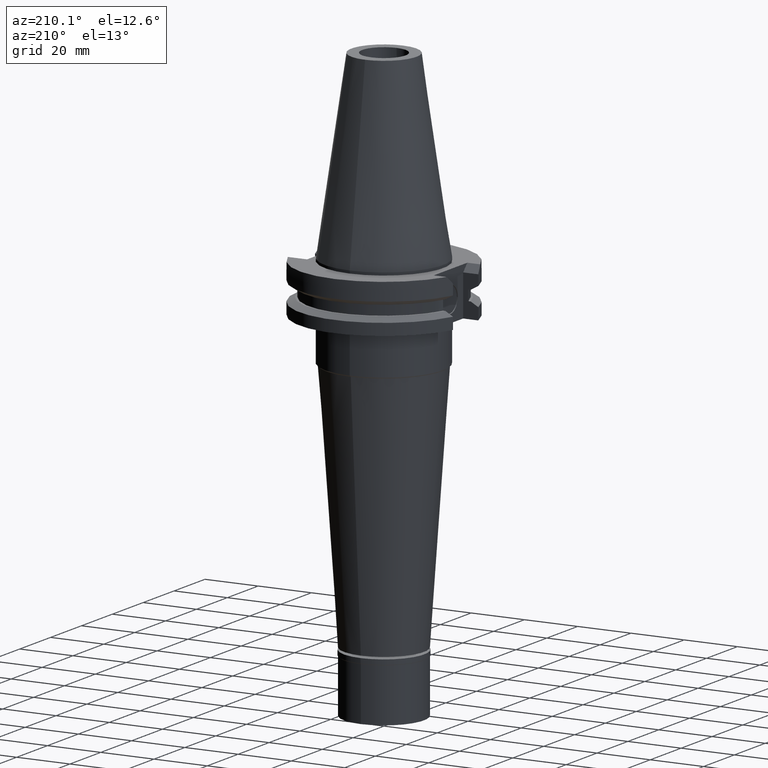
[diagram: clean part render]
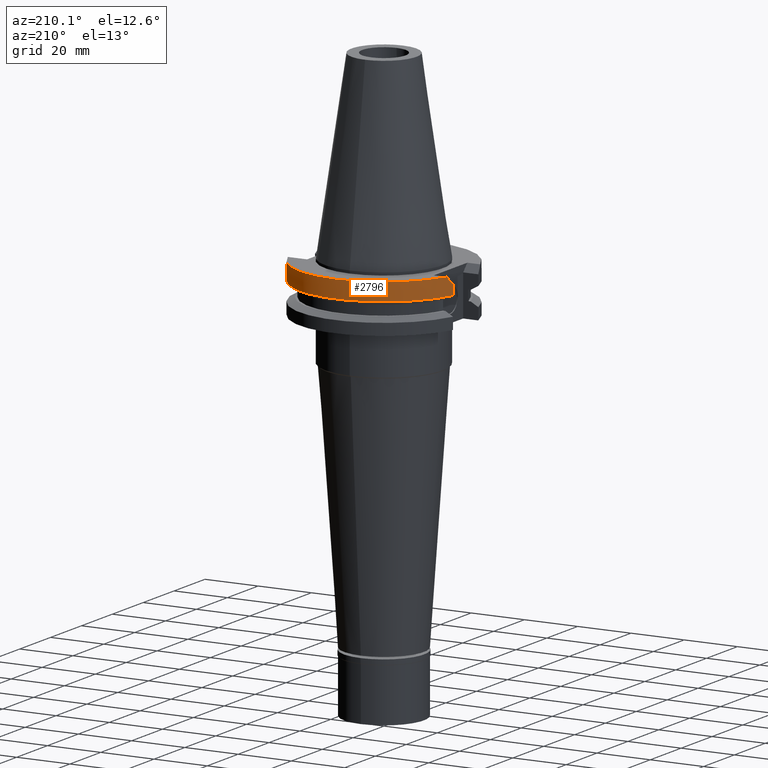
[diagram: same view with one face highlighted and labeled with its STEP entity id]
A machine part, auxiliary view. The second image highlights one B-rep face of the part: STEP entity #2796.
In plain terms, the highlighted cylindrical surface (partial cylindrical patch) has radius 31.75 mm, axis along (0, 0, -1).
Its self-contained STEP definition (entity closure, byte-faithful):
#136 = CARTESIAN_POINT ( 'NONE',  ( -30.67550162588999640, 8.189999999999999503, -3.700000000000000178 ) ) ;
#164 = DIRECTION ( 'NONE',  ( 0.9661575315241073270, 0.2579527559055020958, 0.0000000000000000000 ) ) ;
#258 = CARTESIAN_POINT ( 'NONE',  ( 0.0000000000000000000, 2.191474830903999739E-14, 78.94750000000000512 ) ) ;
#340 = ORIENTED_EDGE ( 'NONE', *, *, #3370, .F. ) ;
#449 = CARTESIAN_POINT ( 'NONE',  ( 30.67550162588999640, 8.189999999999999503, -3.700000000000000178 ) ) ;
#590 = EDGE_CURVE ( 'NONE', #1685, #2473, #3090, .T. ) ;
#621 = VERTEX_POINT ( 'NONE', #3074 ) ;
#662 = DIRECTION ( 'NONE',  ( 0.0000000000000000000, 0.0000000000000000000, 1.000000000000000000 ) ) ;
#672 = EDGE_CURVE ( 'NONE', #2222, #2510, #2345, .T. ) ;
#720 = CARTESIAN_POINT ( 'NONE',  ( 29.82399034335000110, 10.89000000000000057, -1.000000000001000089 ) ) ;
#798 = ORIENTED_EDGE ( 'NONE', *, *, #2600, .T. ) ;
#883 = VECTOR ( 'NONE', #1023, 1000.000000000000227 ) ;
#950 = VECTOR ( 'NONE', #998, 1000.000000000000114 ) ;
#998 = DIRECTION ( 'NONE',  ( -8.519384307627985116E-09, 3.190869408041993492E-08, 0.9999999999999994449 ) ) ;
#1023 = DIRECTION ( 'NONE',  ( 4.106767718839951706E-08, 1.538187626443980157E-07, -0.9999999999999872324 ) ) ;
#1151 = CARTESIAN_POINT ( 'NONE',  ( -29.82399034335000110, 10.89000000000000057, -1.000000000000000000 ) ) ;
#1259 = EDGE_CURVE ( 'NONE', #1329, #621, #2793, .T. ) ;
#1300 = DIRECTION ( 'NONE',  ( 0.0000000000000000000, -1.000000000000000000, 0.0000000000000000000 ) ) ;
#1329 = VERTEX_POINT ( 'NONE', #2315 ) ;
#1376 = B_SPLINE_CURVE_WITH_KNOTS ( 'NONE', 3,
 ( #2688, #2463, #1634, #136 ),
 .UNSPECIFIED., .F., .F.,
 ( 4, 4 ),
 ( 0.0000000000000000000, 1.000000000000000000 ),
 .UNSPECIFIED. ) ;
#1487 = B_SPLINE_CURVE_WITH_KNOTS ( 'NONE', 3,
 ( #449, #2529, #2020, #720 ),
 .UNSPECIFIED., .F., .F.,
 ( 4, 4 ),
 ( 0.0000000000000000000, 1.000000000000000000 ),
 .UNSPECIFIED. ) ;
#1497 = AXIS2_PLACEMENT_3D ( 'NONE', #1808, #2086, #1607 ) ;
#1500 = CARTESIAN_POINT ( 'NONE',  ( 0.0000000000000000000, 1.121665249527999917E-14, -7.608163357944999206 ) ) ;
#1513 = CARTESIAN_POINT ( 'NONE',  ( 29.82399034335000110, 10.89000000000000057, -1.000000000001000089 ) ) ;
#1526 = AXIS2_PLACEMENT_3D ( 'NONE', #258, #2572, #1300 ) ;
#1546 = CYLINDRICAL_SURFACE ( 'NONE', #1526, 31.75000000000000000 ) ;
#1607 = DIRECTION ( 'NONE',  ( 0.0000000000000000000, 1.000000000000000000, 0.0000000000000000000 ) ) ;
#1634 = CARTESIAN_POINT ( 'NONE',  ( -30.43183015827551330, 9.102667216255303728, -2.787332783744695064 ) ) ;
#1685 = VERTEX_POINT ( 'NONE', #1898 ) ;
#1805 = EDGE_CURVE ( 'NONE', #2473, #2510, #1487, .T. ) ;
#1808 = CARTESIAN_POINT ( 'NONE',  ( 0.0000000000000000000, 2.191474830903999739E-14, -1.000000000000000000 ) ) ;
#1821 = ORIENTED_EDGE ( 'NONE', *, *, #590, .F. ) ;
#1861 = ORIENTED_EDGE ( 'NONE', *, *, #1805, .F. ) ;
#1898 = CARTESIAN_POINT ( 'NONE',  ( 30.67550165918999738, 8.189999875296001264, -7.608164472358999397 ) ) ;
#1960 = AXIS2_PLACEMENT_3D ( 'NONE', #1500, #662, #164 ) ;
#1998 = CARTESIAN_POINT ( 'NONE',  ( 30.67550162588999640, 8.189999999999999503, -3.700000000000000178 ) ) ;
#2020 = CARTESIAN_POINT ( 'NONE',  ( 30.14799306409551960, 10.00266721625513888, -1.887332783744861242 ) ) ;
#2027 = FACE_OUTER_BOUND ( 'NONE', #2047, .T. ) ;
#2047 = EDGE_LOOP ( 'NONE', ( #798, #2118, #340, #3279, #1861, #1821 ) ) ;
#2086 = DIRECTION ( 'NONE',  ( 0.0000000000000000000, 0.0000000000000000000, -1.000000000000000000 ) ) ;
#2118 = ORIENTED_EDGE ( 'NONE', *, *, #1259, .F. ) ;
#2222 = VERTEX_POINT ( 'NONE', #1151 ) ;
#2257 = CARTESIAN_POINT ( 'NONE',  ( -30.67550162588999640, 8.189999999999999503, -3.700000000000000178 ) ) ;
#2315 = CARTESIAN_POINT ( 'NONE',  ( -30.67550162588999640, 8.189999999999999503, -3.700000000000000178 ) ) ;
#2345 = CIRCLE ( 'NONE', #1497, 31.75000000000000000 ) ;
#2463 = CARTESIAN_POINT ( 'NONE',  ( -30.14799306409551249, 10.00266721625513888, -1.887332783744861242 ) ) ;
#2473 = VERTEX_POINT ( 'NONE', #1998 ) ;
#2499 = CIRCLE ( 'NONE', #1960, 31.74999999999998579 ) ;
#2510 = VERTEX_POINT ( 'NONE', #1513 ) ;
#2529 = CARTESIAN_POINT ( 'NONE',  ( 30.43183015827552040, 9.102667216255303728, -2.787332783744695064 ) ) ;
#2572 = DIRECTION ( 'NONE',  ( 0.0000000000000000000, 0.0000000000000000000, -1.000000000000000000 ) ) ;
#2600 = EDGE_CURVE ( 'NONE', #1685, #621, #2499, .T. ) ;
#2604 = CARTESIAN_POINT ( 'NONE',  ( 30.67550165918999738, 8.189999875296001264, -7.608164472358999397 ) ) ;
#2688 = CARTESIAN_POINT ( 'NONE',  ( -29.82399034335000110, 10.89000000000000057, -1.000000000000000000 ) ) ;
#2793 = LINE ( 'NONE', #2257, #883 ) ;
#2796 = ADVANCED_FACE ( 'NONE', ( #2027 ), #1546, .T. ) ;
#3074 = CARTESIAN_POINT ( 'NONE',  ( -30.67550146538999911, 8.190000601148000214, -7.608157985709000037 ) ) ;
#3090 = LINE ( 'NONE', #2604, #950 ) ;
#3279 = ORIENTED_EDGE ( 'NONE', *, *, #672, .T. ) ;
#3370 = EDGE_CURVE ( 'NONE', #2222, #1329, #1376, .T. ) ;